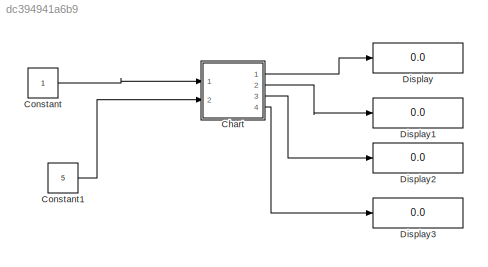
MODEL slx_dc394941a6b9
KIND model
CONFIG AbsTol = auto
CONFIG EnableMultiTasking = off
CONFIG FixedStep = auto
CONFIG MaxStep = auto
CONFIG MinStep = auto
CONFIG RelTol = 1e-3
CONFIG SampleTimeConstraint = Unconstrained
CONFIG SolverName = VariableStepAuto
CONFIG StartTime = 0.0
CONFIG StopTime = 10.0
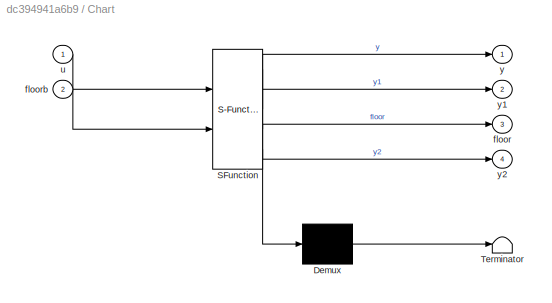
BLOCK [SubSystem] Chart
  ErrorFcn = Stateflow.Translate.translate
  PermitHierarchicalResolution = ExplicitOnly
  Ports = [2, 4]
  RequestExecContextInheritance = off
  SFBlockType = Chart
  TreatAsAtomicUnit = on
BLOCK [Demux] Chart/ Demux 
  Outputs = 1
  Ports = [1, 1]
BLOCK [S-Function] Chart/ SFunction 
  EnableBusSupport = on
  FunctionName = sf_sfun
  PortCounts = [2 5]
  Ports = [2, 5]
  SFcnIsStateOwnerBlock = off
  SFunctionDeploymentMode = off
  Tag = Stateflow S-Function 3
BLOCK [Terminator] Chart/ Terminator 
BLOCK [Outport] Chart/floor
  Port = 3
BLOCK [Inport] Chart/floorb
  Port = 2
BLOCK [Inport] Chart/u
BLOCK [Outport] Chart/y
BLOCK [Outport] Chart/y1
  Port = 2
BLOCK [Outport] Chart/y2
  Port = 4
BLOCK [Constant] Constant
BLOCK [Constant] Constant1
  Value = 5
BLOCK [Display] Display
  Decimation = 1
  Ports = [1]
BLOCK [Display] Display1
  Decimation = 1
  Ports = [1]
BLOCK [Display] Display2
  Decimation = 1
  Ports = [1]
BLOCK [Display] Display3
  Decimation = 1
  Ports = [1]
LINE Chart:1 -> Display:1
LINE Chart:2 -> Display1:1
LINE Chart:3 -> Display2:1
LINE Chart:4 -> Display3:1
LINE Constant1:1 -> Chart:2
LINE Constant:1 -> Chart:1
CHART Chart states=11 transitions=16
  STATE_LABEL 'E_ON\nentry: y = 1;\n'
  STATE_LABEL 'Delay1\nentry:\nfloor=floor-1'
  STATE_LABEL 'DOWN\nentry:\nfloor=floor-1;'
  STATE_LABEL 'IDLE\nentry: y1=0;\n'
  STATE_LABEL 'DoorO1\nentry: y2=1;'
  STATE_LABEL 'DoorC1\nentry: y2=0;'
  STATE_LABEL 'UP\nentry:\nfloor=floor+1;'
  STATE_LABEL 'Delay\nentry:\nfloor=floor+1;\n'
  STATE_LABEL 'DoorO\nentry: y2=1;'
  STATE_LABEL 'DoorC\nentry: y2=0;'
  STATE_LABEL '[floorb<floor]'
  STATE_LABEL '[floorb<floor]{y1=1}'
  STATE_LABEL '[floorb<floor]'
  STATE_LABEL '[floorb==floor]'
  STATE_LABEL '[floor==floor]'
  STATE_LABEL '[floorb>floor]{y1=1}'
  STATE_LABEL 'after(5,sec)'
  STATE_LABEL '[floorb>floor]'
  STATE_LABEL '[floorb>floor]'
  STATE_LABEL '[floor==floorb]'
  STATE_LABEL '[floorb==floor]'
  STATE_LABEL 'after(500,sec)'
  STATE_LABEL 'Delay1\nentry:\nfloor=floor-1'
  STATE_LABEL 'DOWN\nentry:\nfloor=floor-1;'
  STATE_LABEL 'IDLE\nentry: y1=0;\n'
  STATE_LABEL 'DoorO1\nentry: y2=1;'
  STATE_LABEL 'DoorC1\nentry: y2=0;'
  STATE_LABEL 'UP\nentry:\nfloor=floor+1;'
  STATE_LABEL 'Delay\nentry:\nfloor=floor+1;\n'
  STATE_LABEL 'DoorO\nentry: y2=1;'
  STATE_LABEL 'DoorC\nentry: y2=0;'
  STATE_LABEL 'E_OFF\nentry: y = 0;'
CHART  states=0 transitions=0
